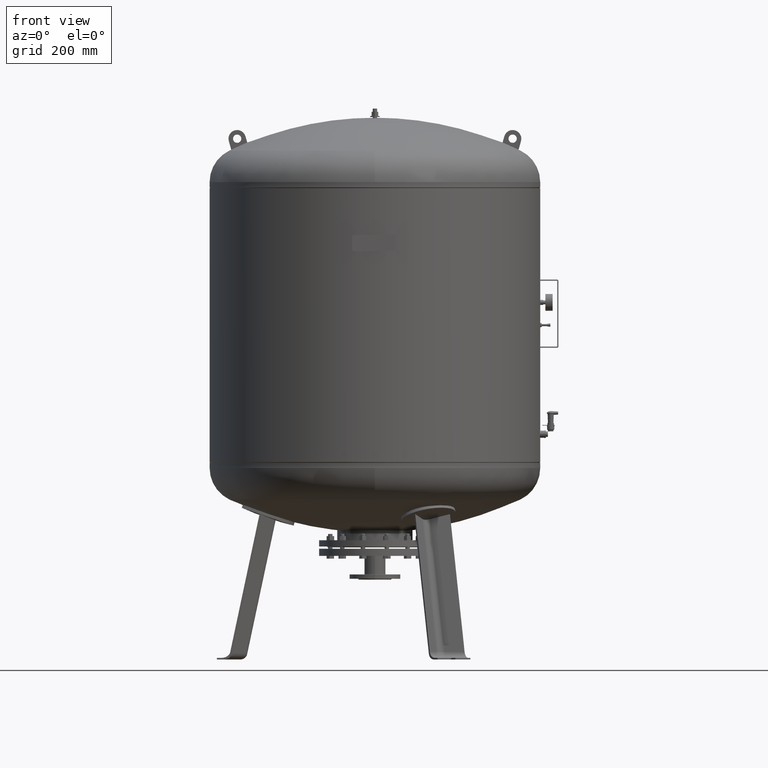
[diagram: clean part render]
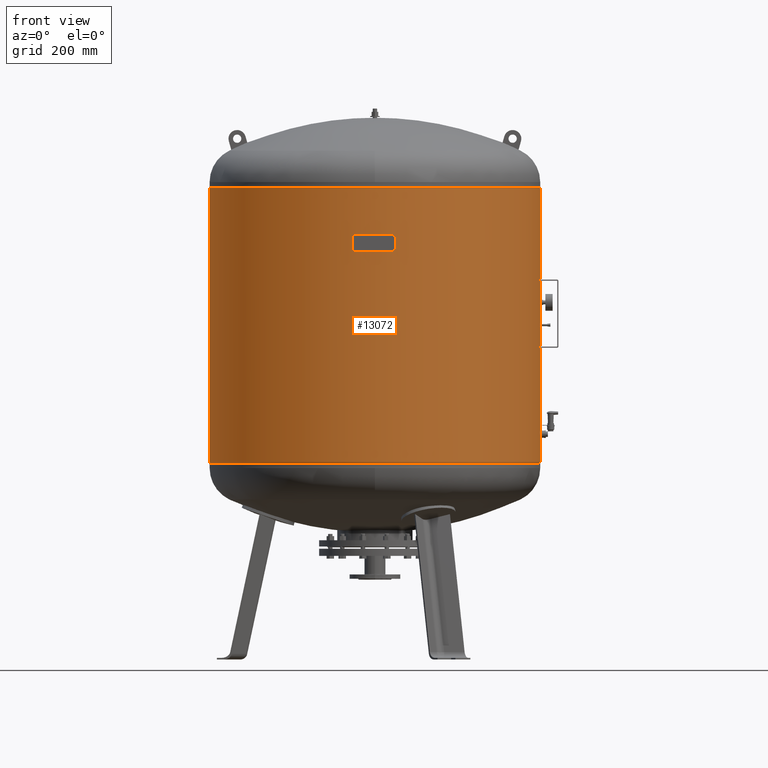
[diagram: same view with one face highlighted and labeled with its STEP entity id]
A machine part, front view. The second image highlights one B-rep face of the part: STEP entity #13072.
In plain terms, the highlighted cylindrical surface (partial cylindrical patch) has radius 600 mm, axis along (0, 0, 1).
Its self-contained STEP definition (entity closure, byte-faithful):
#13031=CARTESIAN_POINT('',(8.293918E-015,0.0,1462.500000000000000));
#13032=DIRECTION('',(3.337593E-017,0.0,1.0));
#13033=DIRECTION('',(1.0,0.0,0.0));
#13034=AXIS2_PLACEMENT_3D('',#13031,#13032,#13033);
#13035=CYLINDRICAL_SURFACE('',#13034,600.000000000000450);
#13036=CARTESIAN_POINT('',(600.000000000000570,0.0,1710.999999999999800));
#13037=VERTEX_POINT('',#13036);
#13038=CARTESIAN_POINT('',(600.000000000000110,0.0,716.999999999999770));
#13039=VERTEX_POINT('',#13038);
#13040=CARTESIAN_POINT('',(600.000000000000570,0.0,1710.999999999999800));
#13041=DIRECTION('',(0.0,0.0,-1.0));
#13042=VECTOR('',#13041,994.0);
#13043=LINE('',#13040,#13042);
#13044=EDGE_CURVE('',#13037,#13039,#13043,.T.);
#13045=ORIENTED_EDGE('',*,*,#13044,.F.);
#13046=CARTESIAN_POINT('',(-600.000000000000450,-7.347638E-014,1710.999999999999800));
#13047=VERTEX_POINT('',#13046);
#13048=CARTESIAN_POINT('',(1.658784E-014,0.0,1710.999999999999800));
#13049=DIRECTION('',(0.0,0.0,1.0));
#13050=DIRECTION('',(1.0,0.0,0.0));
#13051=AXIS2_PLACEMENT_3D('',#13048,#13049,#13050);
#13052=CIRCLE('',#13051,600.000000000000570);
#13053=EDGE_CURVE('',#13047,#13037,#13052,.T.);
#13054=ORIENTED_EDGE('',*,*,#13053,.F.);
#13055=CARTESIAN_POINT('',(-600.000000000000110,-7.347638E-014,716.999999999999770));
#13056=VERTEX_POINT('',#13055);
#13057=CARTESIAN_POINT('',(-600.000000000000450,-7.347638E-014,1710.999999999999800));
#13058=DIRECTION('',(0.0,0.0,-1.0));
#13059=VECTOR('',#13058,994.0);
#13060=LINE('',#13057,#13059);
#13061=EDGE_CURVE('',#13047,#13056,#13060,.T.);
#13062=ORIENTED_EDGE('',*,*,#13061,.T.);
#13063=CARTESIAN_POINT('',(-1.658784E-014,0.0,716.999999999999770));
#13064=DIRECTION('',(0.0,0.0,1.0));
#13065=DIRECTION('',(1.0,0.0,0.0));
#13066=AXIS2_PLACEMENT_3D('',#13063,#13064,#13065);
#13067=CIRCLE('',#13066,600.000000000000110);
#13068=EDGE_CURVE('',#13056,#13039,#13067,.T.);
#13069=ORIENTED_EDGE('',*,*,#13068,.T.);
#13070=EDGE_LOOP('',(#13045,#13054,#13062,#13069));
#13071=FACE_OUTER_BOUND('',#13070,.T.);
#13072=ADVANCED_FACE('',(#13071),#13035,.T.);